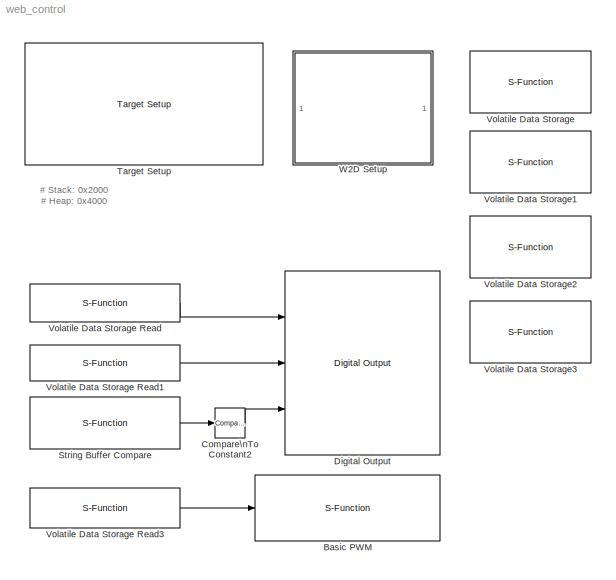
MODEL web_control
KIND model
CONFIG PreLoadFcn = waijung.modelPreload; % Required for working with Waijung Blockset. Do not remove.
BLOCK [S-Function] Basic PWM
  EnableBusSupport = off
  FunctionName = stm32f4_basicpwm
  MaskCallbackString = stm32f4_basicpwm_callback('timer');|stm32f4_basicpwm_callback('pwmperiod');|stm32f4_basicpwm_callback('polarity');||stm32f4_basicpwm_callback('ch1pin');|stm32f4_basicpwm_callback('ch2pin');|stm32f4_basicpwm_callback('ch3pin');|stm32f4_basicpwm_callback('ch4pin');|stm32f4_basicpwm_callback('sampletime');|stm32f4_basicpwm_callback('sampletimestr');|stm32f4_basicpwm_callback('blockid');||stm32f4_basi...<+48ch>
  MaskDescription = This block implements basic Edge-aligned Pulse Width Modulation (PWM) generation.\nAll timers are 16-bit. The PWM period is fixed (per timer).
  MaskDisplay = text(0.95, 0.5, 'Timer: 4\\nPolarity: Active High\\nPeriod (sec) 0.02\\nTs (sec): 0.001','ver','middle','hor','right');port_label('input', 1,'CH4 (D15)')
  MaskEnableString = on,on,on,off,on,on,on,on,on,off,off,on,on,on,on,on,off,off,off,off,off,off
  MaskHelp = web(fullfile(waijungdocroot,'stm32f4_basicpwm.htm'),'-browser')
  MaskIconFrame = on
  MaskIconOpaque = on
  MaskIconRotate = none
  MaskIconUnits = normalized
  MaskInitialization = stm32f4_basicpwm_callback('init');
  MaskPortRotate = default
  MaskPromptString = Timer|PWM Period (seconds)|Polarity|Polaritystr|Channel 1|Channel 2|Channel 3|Channel 4|Sample time (sec)|Compiled sample time (sec) in string|BlockID|Port pin string|Enable custom port labels|Custom input port labels (Ex. In1, In2, In3)|Custom output port labels (Ex. Out1, Out2, Out3)|APB|Port string|Pin string|Pin matrix|Timer ARR|Timer PRESCALE|Channel order
  MaskSelfModifiable = on
  MaskStyleString = popup(1|2|3|4|5|8|9|10|11|12|13|14),edit,popup(Active High|Active Low),edit,popup(Not available - Do not use|D12|B6),popup(Not available - Do not use|D13|B7),popup(Not available - Do not use|D14|B8),popup(Not available - Do not use|D15|B9),edit,edit,edit,edit,checkbox,edit,edit,edit,edit,edit,edit,edit,edit,edit
  MaskTabNameString = ,,,,,,,,,,,,,,,,,,,,,
  MaskToolTipString = on,on,on,on,on,on,on,on,on,on,on,on,on,on,on,on,on,on,on,on,on,on
  MaskTunableValueString = off,off,off,off,off,off,off,off,off,off,off,off,off,off,off,off,off,off,off,off,off,off
  MaskType = stm32f4_basicpwm
  MaskValueString = 4|0.02|Active High|TIM_OCPolarity_High|Not available - Do not use|Not available - Do not use|Not available - Do not use|D15|0.001|0.001|BasicPWM|,,,D15|off|In1, In2, In3, In4|0|1|[\"D\"]|[\"GPIO_Pin_15\"]|[1 15]|64614|25|[4]
  MaskVarAliasString = ,,,,,,,,,,,,,,,,,,,,,
  MaskVariables = timer=&1;pwmperiod=@2;polarity=&3;polaritystr=&4;ch1pin=&5;ch2pin=&6;ch3pin=&7;ch4pin=&8;sampletime=@9;sampletimestr=&10;blockid=&11;portpinstr=&12;enablecustomportlabel=@13;cinputportlabel=&14;coutputportlabel=&15;apb=&16;portstr=&17;pinstr=&18;pinmat=@19;timarr=&20;timprescale=&21;chmat=@22;
  MaskVisibilityString = on,on,on,off,on,on,on,on,on,off,off,off,on,off,off,off,off,off,off,off,off,off
  Parameters = timer,pwmperiod,ch1pin,ch2pin,ch3pin,ch4pin,sampletime,sampletimestr,blockid,apb,portstr,pinstr,pinmat,timarr,timprescale,chmat,polaritystr
  Ports = [1]
BLOCK [Reference] Compare\nTo Constant2  REF=simulink/Logic and Bit\nOperations/Compare\nTo Constant
  FunctionWithSeparateData = off
  LogicOutDataTypeMode = boolean
  Ports = [1, 1]
  RTWMemSecDataConstants = Inherit from model
  RTWMemSecDataInternal = Inherit from model
  RTWMemSecDataParameters = Inherit from model
  RTWMemSecFuncExecute = Inherit from model
  RTWMemSecFuncInitTerm = Inherit from model
  ShowPortLabels = FromPortIcon
  SourceBlock = simulink/Logic and Bit\nOperations/Compare\nTo Constant
  SourceType = Compare To Constant
  SystemSampleTime = -1
  ZeroCross = off
  const = 0
  relop = ==
BLOCK [Reference] Digital Output  REF=stm32f4_io_lib/Digital Output
  Ports = [3]
  SourceBlock = stm32f4_io_lib/Digital Output
  SourceType = stm32f4_digital_output
  bitbandingstr = \n#define DigitalOutput_D12 Peripheral_BB(GPIOD->ODR, 12)  /* Output pin */\n#define DigitalOutput_D13 Peripheral_BB(GPIOD->ODR, 13)  /* Output pin */\n#define DigitalOutput_D14 Peripheral_BB(GPIOD->ODR, 14)  /* Output pin */
  blockid = DigitalOutput
  cinputportlabel = In1, In2
  coutputportlabel = 0
  enablecustomportlabel = off
  globalinit = off
  pinstr = GPIO_Pin_12 | GPIO_Pin_13 | GPIO_Pin_14
  port = D
  porttype = Push Pull
  porttypestr = PP
  sampletime = -1
  sampletimestr = 0.001
  speed = 100
  use_bitband = on
  use_pin0 = off
  use_pin1 = off
  use_pin10 = off
  use_pin11 = off
  use_pin12 = on
  use_pin13 = on
  use_pin14 = on
  use_pin15 = off
  use_pin2 = off
  use_pin3 = off
  use_pin4 = off
  use_pin5 = off
  use_pin6 = off
  use_pin7 = off
  use_pin8 = off
  use_pin9 = off
  usedpinarray = [0  0  0  0  0  0  0  0  0  0  0  0  1  1  1  0]
BLOCK [S-Function] String Buffer Compare
  EnableBusSupport = off
  FunctionName = waijung_stringbuffer_compare
  MaskCallbackString = waijung_stringbuffer_compare_callback('configuration');|waijung_stringbuffer_compare_callback('inputparametertype');|waijung_stringbuffer_compare_callback('parameter1');||waijung_stringbuffer_compare_callback('parameter1_const');|waijung_stringbuffer_compare_callback('parameter2');||waijung_stringbuffer_compare_callback('parameter2_const');|waijung_stringbuffer_compare_callback('comparelengthsourc...<+270ch>
  MaskDescription = This block implements string comparison.
  MaskDisplay = text(0.05, 0.5, '[ strcmp ]\\nParameter 1: l3\\nParameter 2: \"on\"\\nTs (sec): 0.001','ver','middle','hor','left');port_label('output', 1,'Result');
  MaskEnableString = on,on,on,on,on,on,on,on,on,on,off,on,on,on,off,off
  MaskHelp = web(fullfile(waijungdocroot,'waijung_stringbuffer_compare.htm'))
  MaskIconFrame = on
  MaskIconOpaque = on
  MaskIconRotate = none
  MaskIconUnits = normalized
  MaskInitialization = waijung_stringbuffer_compare_callback('init');
  MaskPortRotate = default
  MaskPromptString = Function|Input Parameter type|Parameter 1:|Parameter 1 Var name:|Parameter 1 (Constant):|Parameter 2:|Parameter 2 Var name:|Parameter 2 (Constant):|Length source of compare:|Compare Length:|Method|Input type array|Output type array|Sample time (sec)|Compiled sample time (sec) in string|BlockID
  MaskSelfModifiable = on
  MaskStyleString = popup(strcmp|strncmp|strstr),popup(StringBuffer - StringBuffer|StringBuffer - Constant|Constant - StringBuffer|Constant - Constant),popup(l3),edit,edit,popup(l3|<empty>),edit,edit,popup(Specific|Length of Parameter 1|Length of Parameter 2),edit,edit,edit,edit,edit,edit,edit
  MaskTabNameString = ,,,,,,,,,,,,,,,
  MaskToolTipString = on,on,on,on,on,on,on,on,on,on,on,on,on,on,on,on
  MaskTunableValueString = on,off,off,off,off,off,off,off,off,off,off,off,off,off,off,off
  MaskType = waijung_stringbuffer_compare
  MaskValueString = strcmp|StringBuffer - Constant|l3|VolatileDataStorage2_l3|'String1'|<empty>||'on'|Length of Parameter 2|2|strcmp((char*)VolatileDataStorage2_l3, (char*)\"on\")|[0]|[1 7]|0.001|0.001|StringBufferCompare
  MaskVarAliasString = ,,,,,,,,,,,,,,,
  MaskVariables = configuration=&1;inputparametertype=&2;parameter1=&3;parameter1_varname=&4;parameter1_const=@5;parameter2=&6;parameter2_varname=&7;parameter2_const=@8;comparelengthsource=&9;comparelength=@10;method=&11;inputtypearray=@12;outputtypearray=@13;sampletime=@14;sampletimestr=&15;blockid=&16;
  MaskVisibilityString = on,on,on,off,off,off,off,on,off,off,off,off,off,on,off,off
  Parameters = configuration,method,inputtypearray,outputtypearray,sampletime,sampletimestr,blockid
  Ports = [0, 1]
BLOCK [Reference] Target Setup  REF=stm32f4_device_config_lib/Target Setup
  Ports = []
  Priority = 100
  SourceBlock = stm32f4_device_config_lib/Target Setup
  SourceType = stm32f4_target_setup
  assemblercontrolstr = $(patsubst %, -I%, .) -mcpu=cortex-m4 -mthumb -mthumb-interwork -mfloat-abi=hard -mfpu=fpv4-sp-d16 -ffast-math -Wall -Wextra -Ofast -Wa,-amhls=$(<:.s=.lst) -D__STACK_SIZE=$(STACK_SIZE) -D__HEAP_SIZE=$(HEAP_SIZE)
  blockid = TargetSetup
  clockconfig = HSEOSC-8MHz
  compiler = GNU ARM
  compilercontrolstr = $(patsubst %, -I%, .) -mcpu=cortex-m4 -mthumb -mthumb-interwork -mfloat-abi=hard -mfpu=fpv4-sp-d16 -ffast-math -Wall -Wextra -Ofast
  editctrlstr = on
  enableautocompiledownload = on
  execprofile = None
  flashlength = 1024k
  flashorigin = 0x8000000
  fullchiperase = off
  hclk = 168000000
  heapsize = 0x4000
  hseval = 8000000
  lastprofileruart = 1
  linkercontrolstr = -T$(LD_SCRIPT) -g -Wl,-Map=$(MAP),--cref,--no-warn-mismatch -mcpu=cortex-m4 -mthumb -mthumb-interwork -mfloat-abi=hard -mfpu=fpv4-sp-d16 -specs=nosys.specs
  manualsetsampletime = off
  mcu = STM32F417IG (LQFP176)
  mcustr = STM32F417IG
  previous_compiler = GNU ARM
  profilerbaud = 115200
  profilerinitstr = 0.001,168000000,168000,115200,0
  profilertxpin = D8
  profileruart = 1
  programmerinterface = ST-Link
  ramlength = 128k
  ramorigin = 0x20000000
  runafterdownload = on
  sampletime = 0.001
  showmemoryconfiguration = on
  stacksize = 0x2000
  system_stm32f4xx_c_path = <path>
  systickreloadvalue = 168000
  useextram = off
BLOCK [S-Function] Volatile Data Storage
  EnableBusSupport = off
  FunctionName = waijung_vdata_storage
  MaskCallbackString = waijung_vdata_storage_callback('storagetype');|waijung_vdata_storage_callback('storagename');|waijung_vdata_storage_callback('initval');|waijung_vdata_storage_callback('varname');||waijung_vdata_storage_callback('initvalstring');|waijung_vdata_storage_callback('webintegration');|waijung_vdata_storage_callback('weboutputformat');|||waijung_vdata_storage_callback('sampletime');|waijung_vdata_storage...<+71ch>  <repeated x4 — deduplicated; at blocks: Volatile Data Storage, Volatile Data Storage1, Volatile Data Storage2, Volatile Data Storage3>
  MaskDescription = This block implements a volatile Data Storage.\n\nWeb CGI varset/varget integratiopn:\nEnable - In webserver application, allow remote access via http.\nDisable - Variable is use in local only.  <repeated x4 — deduplicated; at blocks: Volatile Data Storage, Volatile Data Storage1, Volatile Data Storage2, Volatile Data Storage3>
  MaskDisplay = text(0.5, 0.5, 'Name: l1\\nType: int8','ver','middle','hor','center')
  MaskEnableString = on,on,on,off,on,on,on,on,off,on,on,off,off,on
  MaskHelp = web(fullfile(waijungdocroot,'Volatile_Data_Storage.htm'))
  MaskIconFrame = on
  MaskIconOpaque = on
  MaskIconRotate = none
  MaskIconUnits = normalized
  MaskInitialization = waijung_vdata_storage_callback('init');
  MaskPortRotate = default
  MaskPromptString = Storage Type|Storage Name (must be a valid variable name)|Initial value (Apply at Power on Reset only)|Variable name|Size (bytes)|Initial value (Apply at Power on Reset only)|Web CGI varget/varset integration|Web CGI varget output format|Web CGI varset callback|Last selected Storage Type|Sample time (sec)|Compiled sample time (sec) in string|BlockID|Type string  <repeated x4 — deduplicated; at blocks: Volatile Data Storage, Volatile Data Storage1, Volatile Data Storage2, Volatile Data Storage3>
  MaskSelfModifiable = on
  MaskStyleString = popup(double|single|uint32|int32|uint16|int16|uint8|int8|string),edit,edit,edit,edit,edit,popup(Disable|ReadOnly|Write/ Read|ReadOnly with KeyValuePair|Write/ Read with KeyValuePair),edit,edit,popup(double|single|uint32|int32|uint16|int16|uint8|int8|string),edit,edit,edit,edit  <repeated x4 — deduplicated; at blocks: Volatile Data Storage, Volatile Data Storage1, Volatile Data Storage2, Volatile Data Storage3>
  MaskTabNameString = ,,,,,,,,,,,,,
  MaskToolTipString = on,on,on,on,on,on,on,on,on,on,on,on,on,on
  MaskTunableValueString = off,off,off,off,off,off,off,off,off,off,off,off,off,off
  MaskType = waijung_vdata_storage
  MaskValueString = int8|l1|0|VolatileDataStorage_l1|64|'Initial string'|Write/ Read with KeyValuePair|'%d'|(void*)0|int8|-1|0.001|VolatileDataStorage|int8_t
  MaskVarAliasString = ,,,,,,,,,,,,,
  MaskVariables = storagetype=&1;storagename=&2;initval=@3;varname=&4;buffersize=@5;initvalstring=@6;webintegration=&7;weboutputformat=&8;webcgicallback=&9;laststoragetype=&10;sampletime=@11;sampletimestr=&12;blockid=&13;storagetypestr=&14;  <repeated x4 — deduplicated; at blocks: Volatile Data Storage, Volatile Data Storage1, Volatile Data Storage2, Volatile Data Storage3>
  MaskVisibilityString = on,on,on,off,off,off,on,on,off,off,on,off,off,off
  Parameters = storagetype,storagename,initval,varname,buffersize,initvalstring,sampletime,sampletimestr,blockid,storagetypestr
  Ports = []
BLOCK [S-Function] Volatile Data Storage Read
  EnableBusSupport = off
  FunctionName = waijung_vdata_read
  MaskCallbackString = waijung_vdata_read_callback('storagename');|waijung_vdata_read_callback('varname');|waijung_vdata_read_callback('sampletime');|waijung_vdata_read_callback('sampletimestr');|waijung_vdata_read_callback('blockid');|waijung_vdata_read_callback('storagetype');|  <repeated x3 — deduplicated; at blocks: Volatile Data Storage Read, Volatile Data Storage Read1, Volatile Data Storage Read3>
  MaskDescription = This block implements read data from a buffer.
  MaskDisplay = text(0.05, 0.5, 'Buffer: l1','ver','middle','hor','left');port_label('output',1,'D1(int8)')
  MaskEnableString = on,off,on,off,off,on,on
  MaskHelp = web(fullfile(waijungdocroot,'waijung_vdata_read.htm'))
  MaskIconFrame = on
  MaskIconOpaque = on
  MaskIconRotate = none
  MaskIconUnits = normalized
  MaskInitialization = waijung_vdata_read_callback('init');
  MaskPortRotate = default
  MaskPromptString = Storage Name|Variable name|Sample time (sec)|Compiled sample time (sec) in string|BlockID|Data type|Data type string
  MaskSelfModifiable = on
  MaskStyleString = popup(l1|l2|l3|l4),edit,edit,edit,edit,edit,edit
  MaskTabNameString = ,,,,,,
  MaskToolTipString = on,on,on,on,on,on,on
  MaskTunableValueString = off,off,off,off,off,off,off
  MaskType = waijung_vdata_read
  MaskValueString = l1|VolatileDataStorage_l1|inf|0.001|VolatileDataStorageRead|int8|int8_t
  MaskVarAliasString = ,,,,,,
  MaskVariables = storagename=&1;varname=&2;sampletime=@3;sampletimestr=&4;blockid=&5;storagetype=&6;storagetypestr=&7;
  MaskVisibilityString = on,off,on,off,off,off,off
  Parameters = storagename,varname,sampletime,sampletimestr,blockid,storagetype,storagetypestr
  Ports = [0, 1]
BLOCK [S-Function] Volatile Data Storage Read1
  EnableBusSupport = off
  FunctionName = waijung_vdata_read
  MaskDescription = This block implements read data from a buffer.
  MaskDisplay = text(0.05, 0.5, 'Buffer: l2','ver','middle','hor','left');port_label('output',1,'D1(int8)')
  MaskEnableString = on,off,on,off,off,on,on
  MaskHelp = web(fullfile(waijungdocroot,'waijung_vdata_read.htm'))
  MaskIconFrame = on
  MaskIconOpaque = on
  MaskIconRotate = none
  MaskIconUnits = normalized
  MaskInitialization = waijung_vdata_read_callback('init');
  MaskPortRotate = default
  MaskPromptString = Storage Name|Variable name|Sample time (sec)|Compiled sample time (sec) in string|BlockID|Data type|Data type string
  MaskSelfModifiable = on
  MaskStyleString = popup(l1|l2|l3|l4),edit,edit,edit,edit,edit,edit
  MaskTabNameString = ,,,,,,
  MaskToolTipString = on,on,on,on,on,on,on
  MaskTunableValueString = off,off,off,off,off,off,off
  MaskType = waijung_vdata_read
  MaskValueString = l2|VolatileDataStorage1_l2|inf|0.001|VolatileDataStorageRead1|int8|int8_t
  MaskVarAliasString = ,,,,,,
  MaskVariables = storagename=&1;varname=&2;sampletime=@3;sampletimestr=&4;blockid=&5;storagetype=&6;storagetypestr=&7;
  MaskVisibilityString = on,off,on,off,off,off,off
  Parameters = storagename,varname,sampletime,sampletimestr,blockid,storagetype,storagetypestr
  Ports = [0, 1]
BLOCK [S-Function] Volatile Data Storage Read3
  EnableBusSupport = off
  FunctionName = waijung_vdata_read
  MaskDescription = This block implements read data from a buffer.
  MaskDisplay = text(0.05, 0.5, 'Buffer: l4','ver','middle','hor','left');port_label('output',1,'D1(double)')
  MaskEnableString = on,off,on,off,off,on,on
  MaskHelp = web(fullfile(waijungdocroot,'waijung_vdata_read.htm'))
  MaskIconFrame = on
  MaskIconOpaque = on
  MaskIconRotate = none
  MaskIconUnits = normalized
  MaskInitialization = waijung_vdata_read_callback('init');
  MaskPortRotate = default
  MaskPromptString = Storage Name|Variable name|Sample time (sec)|Compiled sample time (sec) in string|BlockID|Data type|Data type string
  MaskSelfModifiable = on
  MaskStyleString = popup(l1|l2|l3|l4),edit,edit,edit,edit,edit,edit
  MaskTabNameString = ,,,,,,
  MaskToolTipString = on,on,on,on,on,on,on
  MaskTunableValueString = off,off,off,off,off,off,off
  MaskType = waijung_vdata_read
  MaskValueString = l4|VolatileDataStorage3_l4|inf|0.001|VolatileDataStorageRead3|double|double
  MaskVarAliasString = ,,,,,,
  MaskVariables = storagename=&1;varname=&2;sampletime=@3;sampletimestr=&4;blockid=&5;storagetype=&6;storagetypestr=&7;
  MaskVisibilityString = on,off,on,off,off,off,off
  Parameters = storagename,varname,sampletime,sampletimestr,blockid,storagetype,storagetypestr
  Ports = [0, 1]
BLOCK [S-Function] Volatile Data Storage1
  EnableBusSupport = off
  FunctionName = waijung_vdata_storage
  MaskDisplay = text(0.5, 0.5, 'Name: l2\\nType: int8','ver','middle','hor','center')
  MaskEnableString = on,on,on,off,on,on,on,on,off,on,on,off,off,on
  MaskHelp = web(fullfile(waijungdocroot,'Volatile_Data_Storage.htm'))
  MaskIconFrame = on
  MaskIconOpaque = on
  MaskIconRotate = none
  MaskIconUnits = normalized
  MaskInitialization = waijung_vdata_storage_callback('init');
  MaskPortRotate = default
  MaskSelfModifiable = on
  MaskTabNameString = ,,,,,,,,,,,,,
  MaskToolTipString = on,on,on,on,on,on,on,on,on,on,on,on,on,on
  MaskTunableValueString = off,off,off,off,off,off,off,off,off,off,off,off,off,off
  MaskType = waijung_vdata_storage
  MaskValueString = int8|l2|0|VolatileDataStorage1_l2|64|'Initial string'|Write/ Read with KeyValuePair|'%d'|(void*)0|int8|-1|0.001|VolatileDataStorage1|int8_t
  MaskVarAliasString = ,,,,,,,,,,,,,
  MaskVisibilityString = on,on,on,off,off,off,on,on,off,off,on,off,off,off
  Parameters = storagetype,storagename,initval,varname,buffersize,initvalstring,sampletime,sampletimestr,blockid,storagetypestr
  Ports = []
BLOCK [S-Function] Volatile Data Storage2
  EnableBusSupport = off
  FunctionName = waijung_vdata_storage
  MaskDisplay = text(0.5, 0.5, 'Name: l3\\nType: string','ver','middle','hor','center')
  MaskEnableString = on,on,on,off,on,on,on,on,off,on,on,off,off,on
  MaskHelp = web(fullfile(waijungdocroot,'Volatile_Data_Storage.htm'))
  MaskIconFrame = on
  MaskIconOpaque = on
  MaskIconRotate = none
  MaskIconUnits = normalized
  MaskInitialization = waijung_vdata_storage_callback('init');
  MaskPortRotate = default
  MaskSelfModifiable = on
  MaskTabNameString = ,,,,,,,,,,,,,
  MaskToolTipString = on,on,on,on,on,on,on,on,on,on,on,on,on,on
  MaskTunableValueString = off,off,off,off,off,off,off,off,off,off,off,off,off,off
  MaskType = waijung_vdata_storage
  MaskValueString = string|l3|0|VolatileDataStorage2_l3|64|'off'|Write/ Read with KeyValuePair|'%s'|(void*)0|string|-1|0.001|VolatileDataStorage2|char
  MaskVarAliasString = ,,,,,,,,,,,,,
  MaskVisibilityString = on,on,off,off,on,on,on,on,off,off,on,off,off,off
  Parameters = storagetype,storagename,initval,varname,buffersize,initvalstring,sampletime,sampletimestr,blockid,storagetypestr
  Ports = []
BLOCK [S-Function] Volatile Data Storage3
  EnableBusSupport = off
  FunctionName = waijung_vdata_storage
  MaskDisplay = text(0.5, 0.5, 'Name: l4\\nType: double','ver','middle','hor','center')
  MaskEnableString = on,on,on,off,on,on,on,on,off,on,on,off,off,on
  MaskHelp = web(fullfile(waijungdocroot,'Volatile_Data_Storage.htm'))
  MaskIconFrame = on
  MaskIconOpaque = on
  MaskIconRotate = none
  MaskIconUnits = normalized
  MaskInitialization = waijung_vdata_storage_callback('init');
  MaskPortRotate = default
  MaskSelfModifiable = on
  MaskTabNameString = ,,,,,,,,,,,,,
  MaskToolTipString = on,on,on,on,on,on,on,on,on,on,on,on,on,on
  MaskTunableValueString = off,off,off,off,off,off,off,off,off,off,off,off,off,off
  MaskType = waijung_vdata_storage
  MaskValueString = double|l4|0|VolatileDataStorage3_l4|64|'off'|Write/ Read with KeyValuePair|'%f'|(void*)0|double|-1|0.001|VolatileDataStorage3|double
  MaskVarAliasString = ,,,,,,,,,,,,,
  MaskVisibilityString = on,on,on,off,off,off,on,on,off,off,on,off,off,off
  Parameters = storagetype,storagename,initval,varname,buffersize,initvalstring,sampletime,sampletimestr,blockid,storagetypestr
  Ports = []
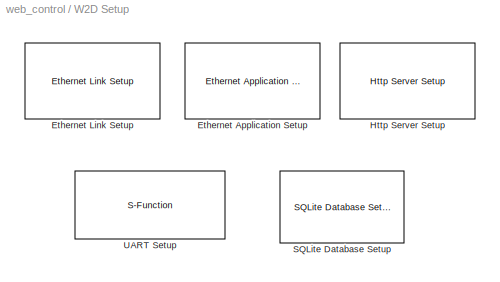
BLOCK [SubSystem] W2D Setup
  FunctionWithSeparateData = off
  MaskHideContents = off
  MinAlgLoopOccurrences = off
  Opaque = off
  Ports = []
  PropExecContextOutsideSubsystem = off
  RTWSystemCode = Auto
  RequestExecContextInheritance = off
BLOCK [Reference] W2D Setup/Ethernet Application Setup  REF=waijung_webserver/Ethernet Application Setup
  Ports = []
  SourceBlock = waijung_webserver/Ethernet Application Setup
  SourceType = waijung_ethernet_app
  blockid = W2DSetupEthernetApplicationSetup
  compat = 0
  conf = Setup
  dhcp = off
  gateway = 192.168.1.1
  inputportlabel = {}
  inputporttype = []
  inputportwidth = []
  ipaddress = 192.168.1.30
  macaddress = 02-00-00-00-00-00
  netmask = 255.255.255.0
  optionstring = [\"Dummy\",\"192\",\"168\",\"1\",\"30\",\"255\",\"255\",\"255\",\"0\",\"192\",\"168\",\"1\",\"1\",\"02\",\"00\",\"00\",\"00\",\"00\",\"00\",\"off\",\"10\"]
  outputportlabel = {}
  outputporttype = []
  outputportwidth = []
  portpinstr = 0
  sampletime = 0.001
  timerscaler = 10
BLOCK [Reference] W2D Setup/Ethernet Link Setup  REF=waijung_webserver/Ethernet Link Setup
  Ports = []
  SourceBlock = waijung_webserver/Ethernet Link Setup
  SourceType = waijung_ethernet_inf
  blockid = W2DSetupEthernetLinkSetup
  compat = 0
  conf = Setup
  inputportlabel = {}
  inputporttype = []
  inputportwidth = []
  interfacepin = Profile #1
  optionstring = [\"xxx\",\"on\",\"on\",\"on\",\"off\",\"on\",\"off\",\"off\",\"off\",\"off\",\"on\",\"on\",\"on\",\"on\",\"on\",\"on\",\"on\",\"off\",\"on\",\"on\",\"on\",\"on\",\"on\",\"on\",\"on\",\"on\",\"on\",\"on\",\"A\",\"0\",\"A\",\"1\",\"A\",\"2\",\"A\",\"3\",\"A\",\"7\",\"B\",\"0\",\"B\",\"1\",\"N\",\"ot used\",\"E\",\"2\",\"B\",\"10\",\"B\",\"11\",\"B\",\"12\",\"B\",\"13\",\"C\",\"1\",\"C\",\"2\",\"C\",...<+38ch>
  outputportlabel = {}
  outputporttype = []
  outputportwidth = []
  pin_col = A3
  pin_crs = A0
  pin_dv = A7
  pin_mdc = C1
  pin_mdio = A2
  pin_pps = Not used
  pin_rxclk = A1
  pin_rxd0 = C4
  pin_rxd1 = C5
  pin_rxd2 = B0
  pin_rxd3 = B1
  pin_rxer = B10
  pin_txclk = C3
  pin_txd0 = B12
  pin_txd1 = B13
  pin_txd2 = C2
  pin_txd3 = E2
  pin_txen = B11
  portpinstr = A0,A1,A2,A3,A7,B0,B1,E2,B10,B11,B12,B13,C1,C2,C3,C4,C5
  sampletime = inf
  wj_interfacetype = MII
BLOCK [Reference] W2D Setup/Http Server Setup  REF=waijung_webserver/Http Server Setup
  Ports = []
  SourceBlock = waijung_webserver/Http Server Setup
  SourceType = waijung_httpserver_setup
  blockid = W2DSetupHttpServerSetup
  compat = 0
  conf = Setup
  debugport = Disable
  iap = Disable
  inputportlabel = {}
  inputporttype = []
  inputportwidth = []
  mempool = 8
  optionstring = [\"80\",\"0\",\"0\",\"Enable\",\"Disable\",\"8\",\"17.02a\",\"\",\"\",\"\",\"l1\",\"int8\",\"VolatileDataStorage_l1\",\"1\",\"1\",\"1\",\"(void*)0\",\"%d\",\"\",\"\",\"l2\",\"int8\",\"VolatileDataStorage1_l2\",\"1\",\"1\",\"1\",\"(void*)0\",\"%d\",\"\",\"\",\"l3\",\"string\",\"VolatileDataStorage2_l3\",\"64\",\"1\",\"1\",\"(void*)0\",\"%s\",\"\",\"\",\"l4\",\"double\",\"VolatileDataStorage3_l4\",\...<+47ch>
  outputportlabel = {}
  outputporttype = []
  outputportwidth = []
  port = 80
  portpinstr = 0
  sampletime = inf
  sqlite = Enable
  ssl = Disable
BLOCK [Reference] W2D Setup/SQLite Database Setup  REF=amg_sqlite_dataserver/SQLite Database Setup
  Ports = []
  Priority = 1
  SourceBlock = amg_sqlite_dataserver/SQLite Database Setup
  SourceType = waijung_sqlite_setup
  blockid = W2DSetupSQLiteDatabaseSetup
  buffersize = 8192
  inputtypearray = [0]
  outputtypearray = [0]
  port = UART6
  reset = Software
  resetpin = 0
  resetport = A
  sampletime = inf
  sampletimestr = 0.001
  timeout = 5
BLOCK [S-Function] W2D Setup/UART Setup
  EnableBusSupport = off
  FunctionName = stm32f4_usart
  MaskCallbackString = stm32f4_usart_callback('configuration');|stm32f4_usart_callback('uartmodule');|stm32f4_usart_callback('baudrate');||||||stm32f4_usart_callback('flowcontrol');|||stm32f4_usart_callback('advanceoptions');|||stm32f4_usart_callback('transfer');|stm32f4_usart_callback('packetmode');|stm32f4_usart_callback('binheader');|stm32f4_usart_callback('binterminator');|stm32f4_usart_callback('porttype');|stm32f4...<+572ch>
  MaskDisplay = text(0.5, 0.5, 'Module: USART6_Setup\\nBaud (Bps): 1e6\\nDMA Buffer: 1024/2048\\nTx/Rx Pin: C6/C7','ver','middle','hor','center');
  MaskEnableString = on,on,on,on,on,on,on,on,on,off,off,on,on,on,on,on,on,on,on,on,on,on,on,on,on,on,on,on,on,on,on,on,on,on,on,on,on,on,on,off,off,on,on
  MaskHelp = web(fullfile(waijungdocroot,'stm32f4_usart_setup.htm'), '-browser')
  MaskIconFrame = on
  MaskIconOpaque = on
  MaskIconRotate = none
  MaskIconUnits = normalized
  MaskInitialization = stm32f4_usart_callback('init');
  MaskPortRotate = default
  MaskPromptString = Configuration|UART Module|Baud rate (bps)|Data bits|Parity|Stop bit|Tx Pin|Rx Pin|Hardware flow control|HW Flow control, CTS Pin|HW Flow control, RTS Pin|Advance options|Rx buffer size (bytes)|Tx buffer size (bytes)|Transfer|Packet mode|Binary header (example: '7E 7E')|Binary terminator (example: '03 03')|Number of data port, type DOUBLE|Number of data port, type SINGLE|Number of data port, type I...<+457ch>
  MaskSelfModifiable = on
  MaskStyleString = popup(Setup|Tx|Rx),popup(1|2|3|4|5|6),edit,popup(8),popup(No|Odd|Even),popup(0.5|1|1.5|2),popup(Not used|C6|G14),popup(Not used|C7|G9),popup(None|RTS|CTS|RTS/CTS),popup(Not used|G13|G15),popup(Not used|G8|G12),checkbox,popup(16|32|64|128|256|512|1024|2048),popup(16|32|64|128|256|512|1024|2048),popup(Blocking|Non-Blocking),popup(Ascii|Binary|String Buffer),edit,edit,edit,edit,edit,edit,edit,edit,ed...<+251ch>
  MaskTabNameString = ,,,,,,,,,,,,,,,,,,,,,,,,,,,,,,,,,,,,,,,,,,
  MaskToolTipString = on,on,on,on,on,on,on,on,on,on,on,on,on,on,on,on,on,on,on,on,on,on,on,on,on,on,on,on,on,on,on,on,on,on,on,on,on,on,on,on,on,on,on
  MaskTunableValueString = off,off,off,off,off,off,off,off,off,off,off,off,off,off,off,off,off,off,off,off,off,off,off,off,off,off,off,off,off,off,off,off,off,off,off,off,off,off,off,off,off,off,off
  MaskType = stm32f4_usart
  MaskValueString = Setup|6|1e6|8|No|1|C6|C7|None|Not used|Not used|on|2048|1024|Blocking|Ascii|'7E 7E'|'03 03'|1|0|1|0|0|0|0|0|'%d,%f'|CRLF (0x0D 0x0A - \"<path>")|CR (0x0D - \"\\r\")|<empty>||[0]|[0]|[0]|[0]|0|''|[0]|-1|0.001|W2DSetupUARTSetup|[ \"dummy\", \"1\", \"C\", \"6\", \"1\", \"C\", \"7\", \"0\", \"*\", \"*\", \"0\", \"*\", \"*\", \"2\", \"5\", \"6\", \"2\", \"5\", \"1\", \"1024\", \"2048\", \"2\", \"6\", ...<+54ch>
  MaskVarAliasString = ,,,,,,,,,,,,,,,,,,,,,,,,,,,,,,,,,,,,,,,,,,
  MaskVariables = configuration=&1;uartmodule=&2;baudrate=@3;databits=@4;parity=&5;stopbit=&6;remaptxpin=&7;remaprxpin=&8;flowcontrol=&9;remapctspin=&10;remaprtspin=&11;advanceoptions=@12;rxbuffersize=@13;txbuffersize=@14;transfer=&15;packetmode=&16;binheader=&17;binterminator=&18;porttype_double=@19;porttype_single=@20;porttype_int8=@21;porttype_uint8=@22;porttype_int16=@23;porttype_uint16=@24;porttype_int32=@25;p...<+306ch>
  MaskVisibilityString = off,on,on,on,on,on,on,on,on,on,on,on,on,on,off,off,off,off,off,off,off,off,off,off,off,off,off,off,off,off,off,off,off,off,off,off,off,off,off,off,off,off,off
  Parameters = configuration,uartmodule,transfer,baudrate,inputtype,outputtype,confstr,binheaderarray,binterminatorarray,asciiheader,asciiterminator,bindatalength,packetmode,varname,sampletime,sampletimestr,blockid
  Ports = []
  Priority = 1
ANNOTATION (root): # Stack: 0x2000\n# Heap: 0x4000
LINE Compare\nTo Constant2:1 -> Digital Output:3
LINE String Buffer Compare:1 -> Compare\nTo Constant2:1
LINE Volatile Data Storage Read1:1 -> Digital Output:2
LINE Volatile Data Storage Read3:1 -> Basic PWM:1
LINE Volatile Data Storage Read:1 -> Digital Output:1
note: 2 file-system paths scrubbed to <path> (not preserved elsewhere — flat text is the only slx artifact)
